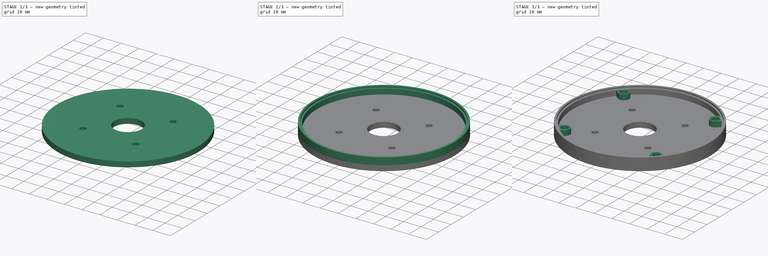
[diagram: build sequence overview — one tinted view per stage of 3, left to right]
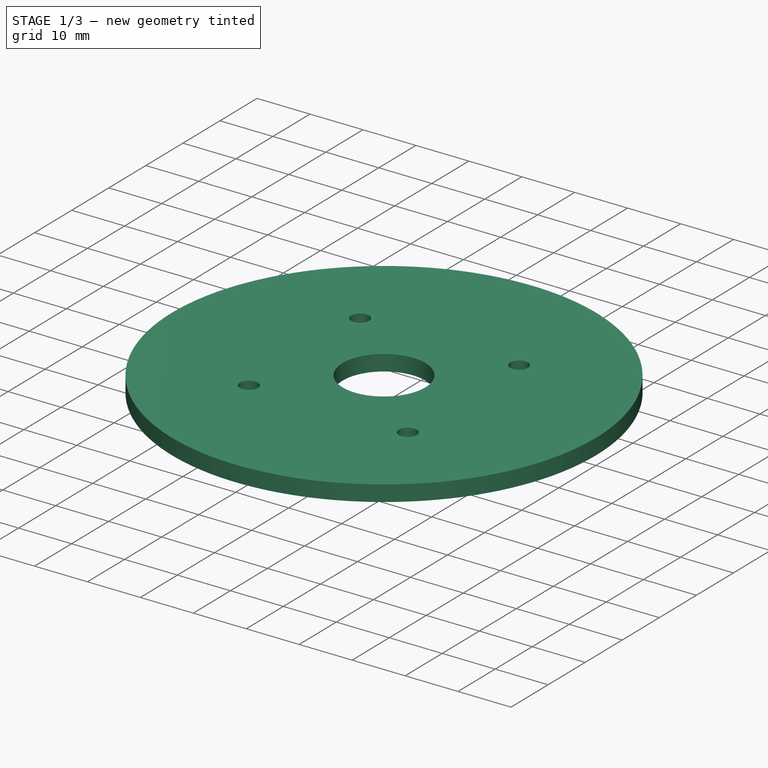
[diagram: stage 1 of 3 — iso view after this stage's code; geometry added in this stage tinted green]
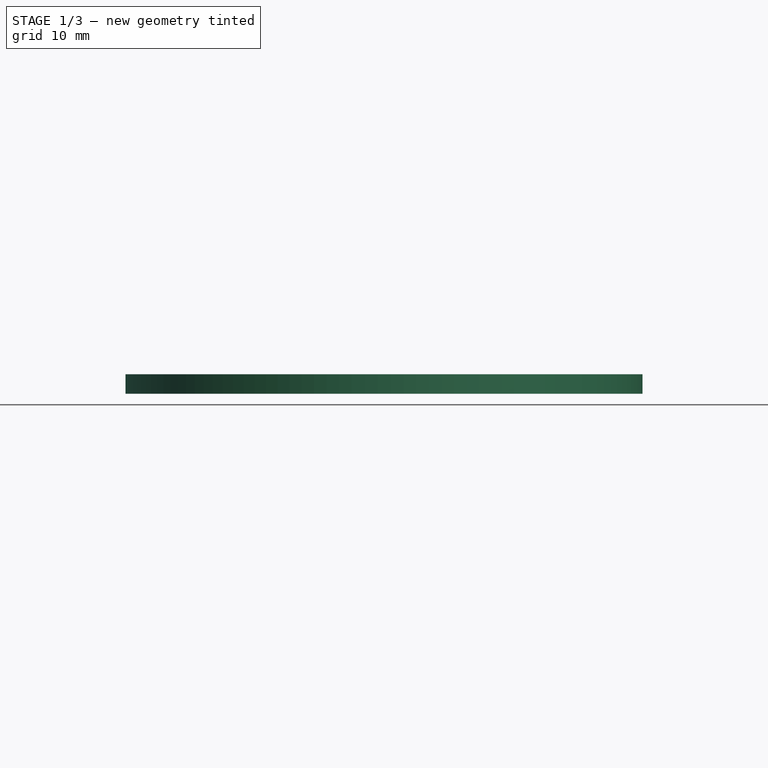
[diagram: stage 1 of 3 — front view after this stage's code; geometry added in this stage tinted green]
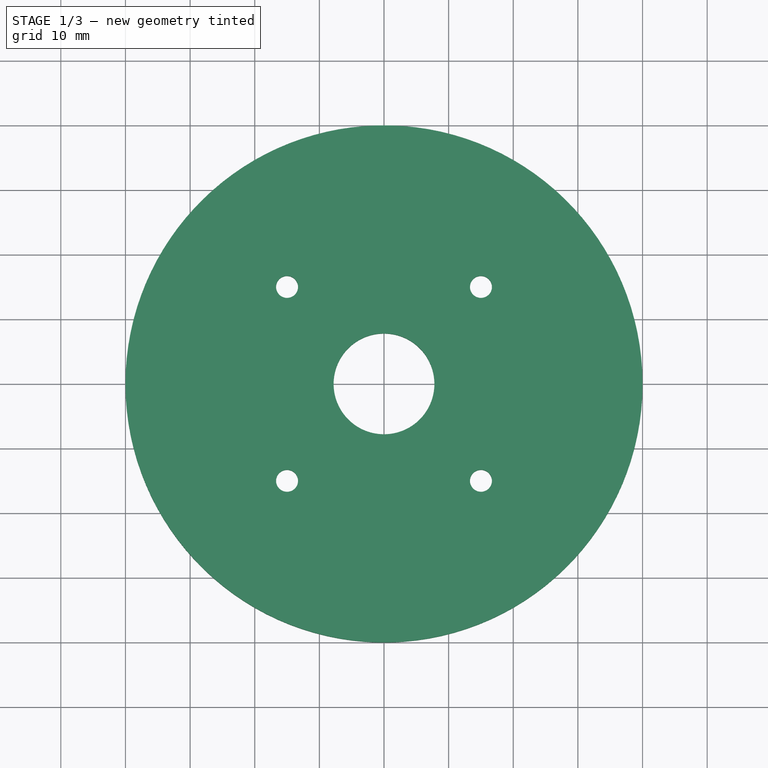
[diagram: stage 1 of 3 — top view after this stage's code; geometry added in this stage tinted green]
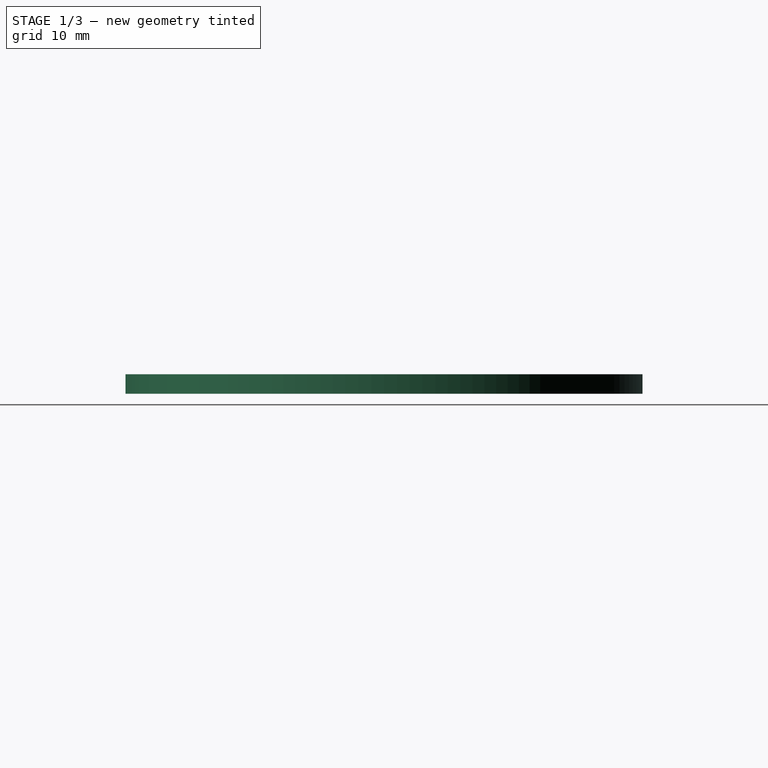
[diagram: stage 1 of 3 — right view after this stage's code; geometry added in this stage tinted green]
FCSTD DOCUMENT  (FreeCAD 0.16RUnknown)
Label: top
License: All rights reserved
LicenseURL: http://en.wikipedia.org/wiki/All_rights_reserved
objects: Sketcher::SketchObject×6, PartDesign::Pad×4, PartDesign::Pocket×2, PartDesign::PolarPattern×1, PartDesign::Mirrored×1
note: 20 computed .brp shape members not serialized (recipe doc carries the construction recipe); baked Part::Feature solids carry a one-line shape summary decoded from their .brp

FEATURE [Sketcher::SketchObject] Sketch
  sketch-geometry (2):
    g0: Circle CenterX=0 CenterY=0 CenterZ=0 NormalX=0 NormalY=0 NormalZ=1 Radius=40
    g1: Circle CenterX=0 CenterY=0 CenterZ=0 NormalX=0 NormalY=0 NormalZ=1 Radius=7.8
  constraints (4):
    c: Coincident(g0,g-1)
    c: Coincident(g1,g-1)
    c: Radius(g0) = 40
    c: Radius(g1) = 7.8
FEATURE [PartDesign::Pad] Pad
  Length = 3
  Length2 = 100
  Sketch = -> Sketch
  Type = 0
FEATURE [Sketcher::SketchObject] Sketch001
  Placement = pos=(0,0,3) rot=(0,0,1;0rad)
  Support = -> Pad [Face4]
  sketch-geometry (1):
    g0: Circle CenterX=15 CenterY=15 CenterZ=0 NormalX=0 NormalY=0 NormalZ=1 Radius=1.7
  constraints (3):
    c: Radius(g0) = 1.7
    c: DistanceY(g-1,g0) = 15
    c: DistanceX(g-1,g0) = 15
FEATURE [PartDesign::Pocket] Pocket
  Length = 5
  Sketch = -> Sketch001
  Type = 1
FEATURE [PartDesign::PolarPattern] PolarPattern
  Angle = 360
  Axis = -> Sketch001 [N_Axis]
  Occurrences = 4
  Originals = -> [Pocket]
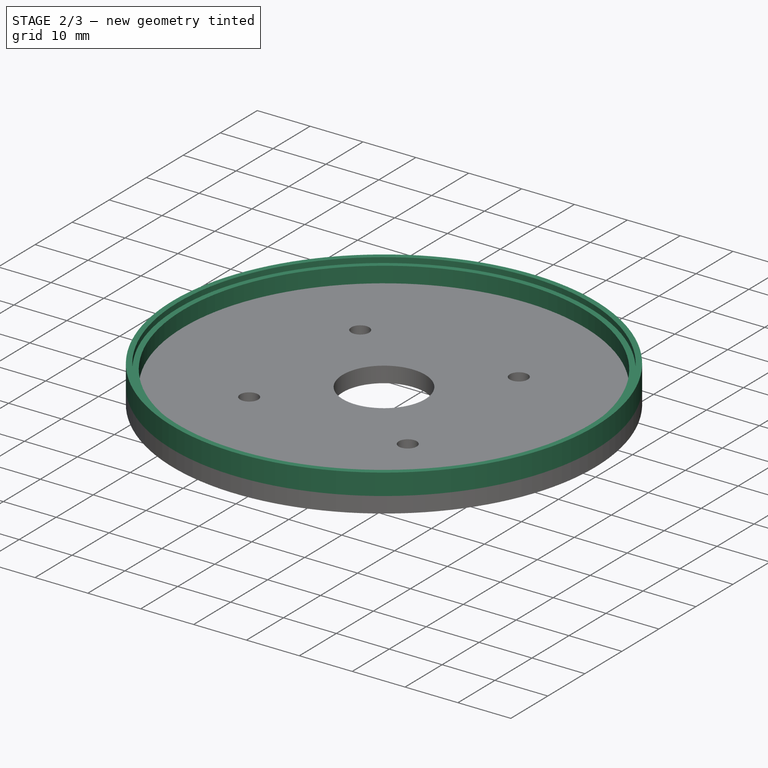
[diagram: stage 2 of 3 — iso view after this stage's code; geometry added in this stage tinted green]
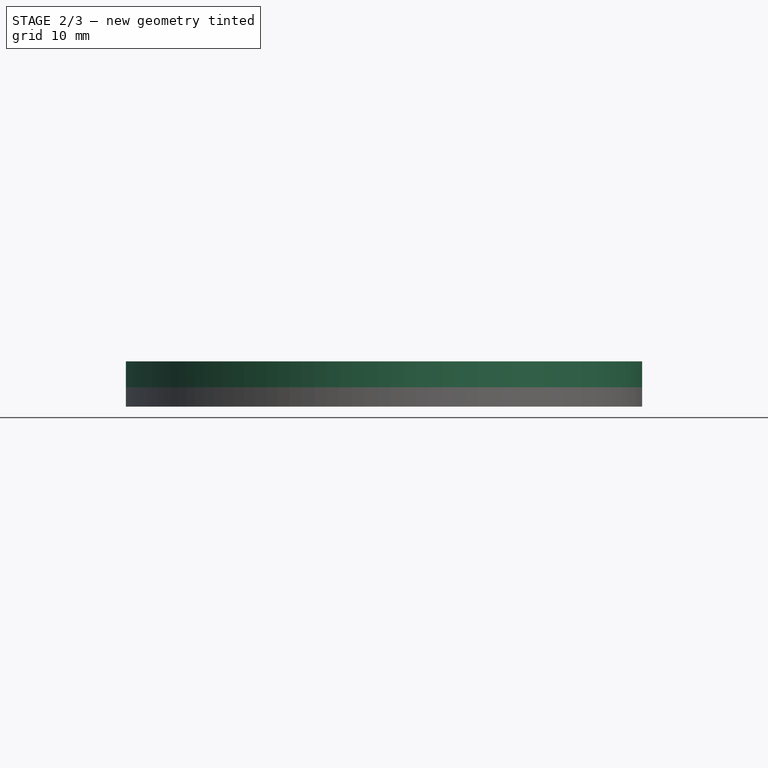
[diagram: stage 2 of 3 — front view after this stage's code; geometry added in this stage tinted green]
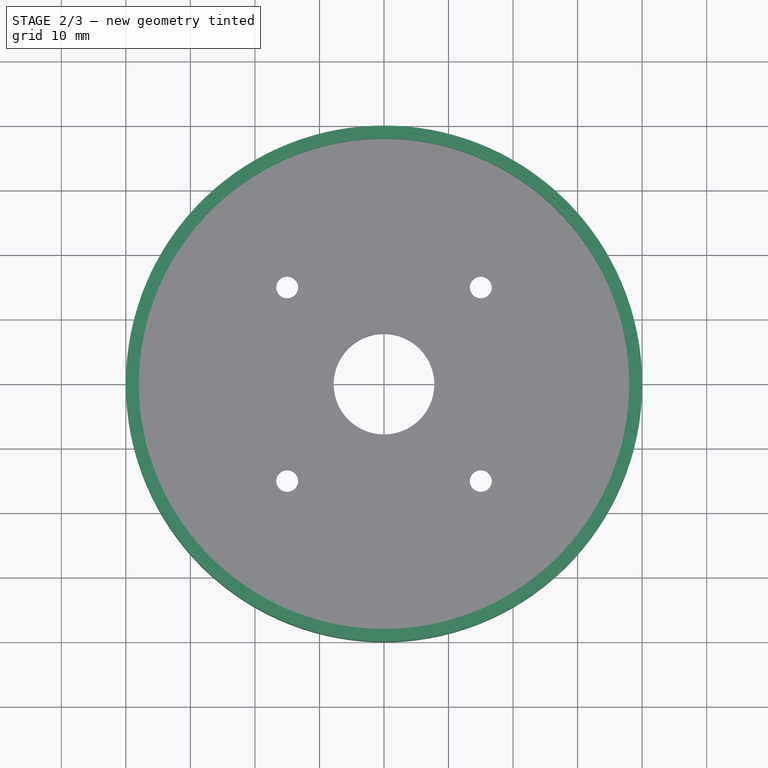
[diagram: stage 2 of 3 — top view after this stage's code; geometry added in this stage tinted green]
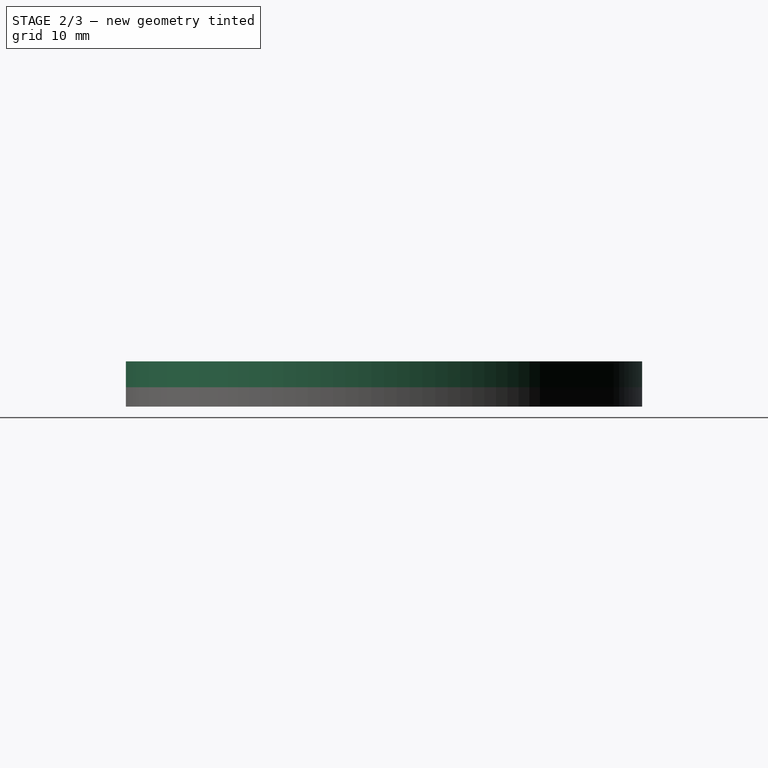
[diagram: stage 2 of 3 — right view after this stage's code; geometry added in this stage tinted green]
FEATURE [Sketcher::SketchObject] Sketch002
  ExternalGeometry = -> [PolarPattern]
  Placement = pos=(0,0,3) rot=(0,0,1;0rad)
  Support = -> PolarPattern [Face3]
  sketch-geometry (2):
    g0: Circle CenterX=0 CenterY=0 CenterZ=0 NormalX=0 NormalY=0 NormalZ=1 Radius=40
    g1: Circle CenterX=0 CenterY=0 CenterZ=0 NormalX=0 NormalY=0 NormalZ=1 Radius=38
  constraints (4):
    c: Coincident(g0,g-1)
    c: Equal(g0,g-3)
    c: Coincident(g-1,g1)
    c: Radius(g1) = 38
FEATURE [PartDesign::Pad] Pad001
  Length = 3
  Length2 = 100
  Sketch = -> Sketch002
  Type = 0
FEATURE [Sketcher::SketchObject] Sketch003
  ExternalGeometry = -> [Pad001]
  Placement = pos=(0,0,6) rot=(0,0,1;0rad)
  Support = -> Pad001 [Face1]
  sketch-geometry (2):
    g0: Circle CenterX=0 CenterY=0 CenterZ=0 NormalX=0 NormalY=0 NormalZ=1 Radius=40
    g1: Circle CenterX=0 CenterY=0 CenterZ=0 NormalX=0 NormalY=0 NormalZ=1 Radius=39
  constraints (4):
    c: Coincident(g0,g-1)
    c: Coincident(g1,g-1)
    c: Radius(g1) = 39
    c: Equal(g0,g-3)
FEATURE [PartDesign::Pad] Pad002
  Length = 1
  Length2 = 100
  Sketch = -> Sketch003
  Type = 0
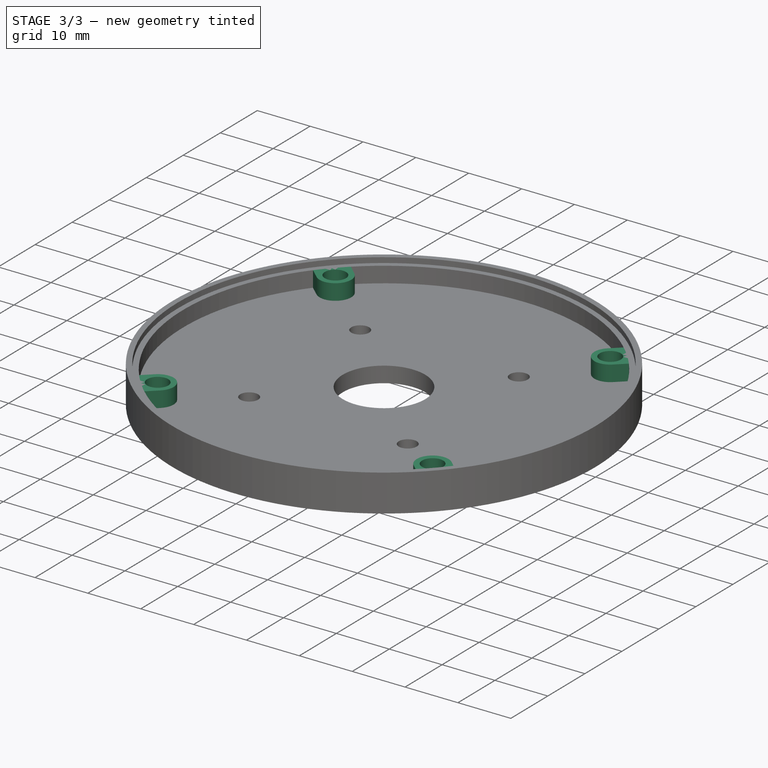
[diagram: stage 3 of 3 — iso view after this stage's code; geometry added in this stage tinted green]
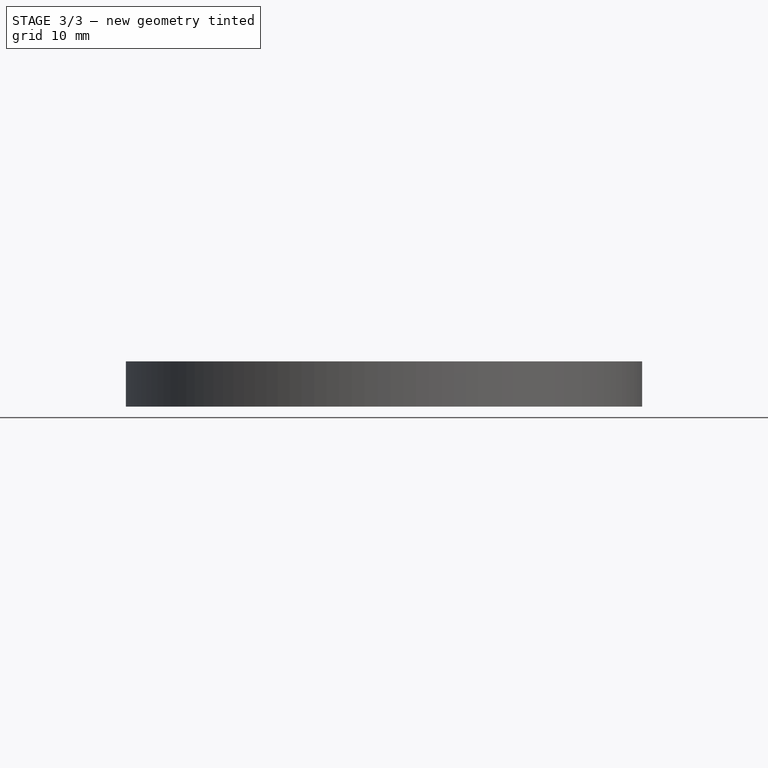
[diagram: stage 3 of 3 — front view after this stage's code; geometry added in this stage tinted green]
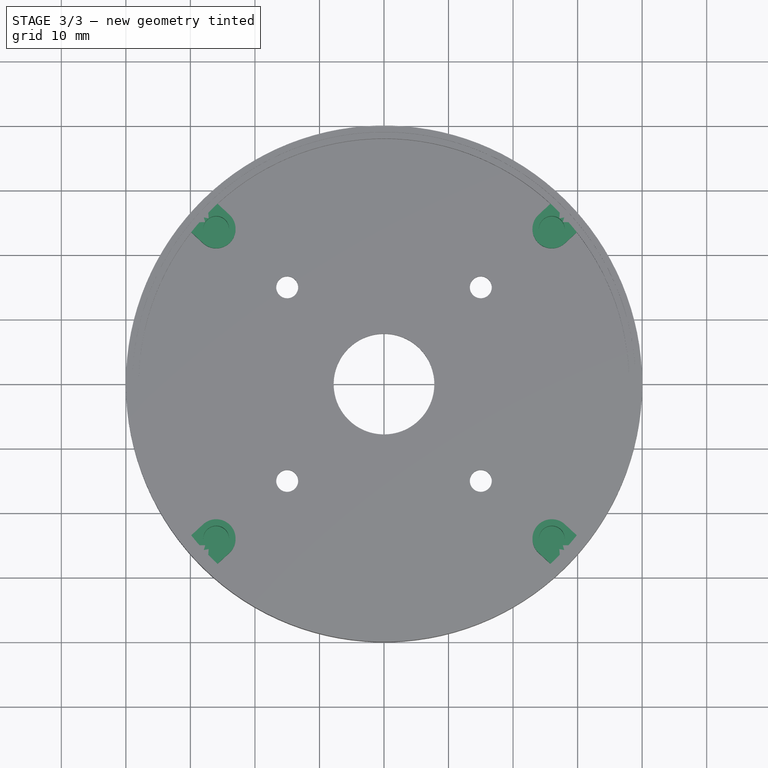
[diagram: stage 3 of 3 — top view after this stage's code; geometry added in this stage tinted green]
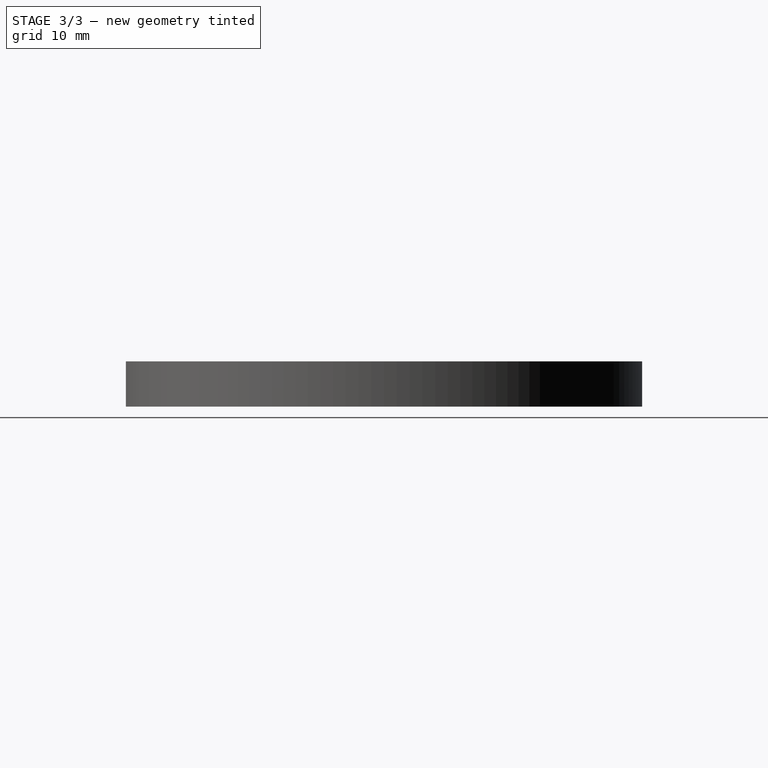
[diagram: stage 3 of 3 — right view after this stage's code; geometry added in this stage tinted green]
FEATURE [Sketcher::SketchObject] Sketch004
  ExternalGeometry = -> [Pad002]
  Placement = pos=(0,0,3) rot=(0,0,1;0rad)
  Support = -> Pad002 [Face10]
  sketch-geometry (13):
    g0: LineSegment [constr] StartX=26 StartY=24 StartZ=0 EndX=26 EndY=-24 EndZ=0
    g1: ArcOfCircle CenterX=26 CenterY=24 CenterZ=0 NormalX=0 NormalY=0 NormalZ=1 Radius=3 StartAngle=2.31622 EndAngle=5.45781
    g2: LineSegment [constr] StartX=28.0348 StartY=21.7956 StartZ=0 EndX=23.9652 EndY=26.2044 EndZ=0
    g3: LineSegment StartX=23.9652 StartY=26.2044 StartZ=0 EndX=25.8877 EndY=27.9791 EndZ=0
    g4: LineSegment StartX=25.8877 StartY=27.9791 StartZ=0 EndX=29.9574 EndY=23.5702 EndZ=0
    g5: LineSegment StartX=29.9574 StartY=23.5702 StartZ=0 EndX=28.0348 EndY=21.7956 EndZ=0
    g6: LineSegment [constr] StartX=26 StartY=24 StartZ=0 EndX=27.9225 EndY=25.7746 EndZ=0
    g7: ArcOfCircle CenterX=26 CenterY=-24 CenterZ=0 NormalX=0 NormalY=0 NormalZ=1 Radius=3 StartAngle=0.825377 EndAngle=3.96697
    g8: LineSegment [constr] StartX=28.0348 StartY=-21.7956 StartZ=0 EndX=23.9652 EndY=-26.2044 EndZ=0
    g9: LineSegment StartX=23.9652 StartY=-26.2044 StartZ=0 EndX=25.8877 EndY=-27.9791 EndZ=0
    g10: LineSegment StartX=25.8877 StartY=-27.9791 StartZ=0 EndX=29.9574 EndY=-23.5702 EndZ=0
    g11: LineSegment StartX=29.9574 StartY=-23.5702 StartZ=0 EndX=28.0348 EndY=-21.7956 EndZ=0
    g12: LineSegment [constr] StartX=26 StartY=-24 StartZ=0 EndX=27.9225 EndY=-25.7746 EndZ=0
  constraints (38):
    c: Vertical(g0)
    c: Distance(g-1,g0) = 26
    c: DistanceY(g0,g0) = 48
    c: Symmetric(g0,g0,g-1)
    c: Coincident(g1,g0)
    c: Coincident(g1,g2)
    c: Coincident(g2,g3)
    c: Coincident(g3,g4)
    c: Coincident(g4,g5)
    c: Coincident(g5,g2)
    c: PointOnObject(g0,g2)
    c: Coincident(g1,g2)
    c: Equal(g5,g3)
    c: Perpendicular(g3,g2)
    c: Coincident(g6,g0)
    c: PointOnObject(g6,g-3)
    c: PointOnObject(g6,g4)
    c: Symmetric(g4,g3,g6)
    c: Perpendicular(g4,g5)
    c: Perpendicular(g-3,g6)
    c: Distance(g2) = 6
    c: Coincident(g7,g0)
    c: Coincident(g7,g8)
    c: Coincident(g8,g9)
    c: Coincident(g9,g10)
    c: Coincident(g10,g11)
    c: Coincident(g11,g8)
    c: Perpendicular(g8,g11)
    c: Perpendicular(g9,g8)
    c: Coincident(g8,g7)
    c: Equal(g9,g11)
    c: Coincident(g12,g0)
    c: PointOnObject(g12,g-3)
    c: Perpendicular(g-3,g12)
    c: PointOnObject(g0,g8)
    c: Perpendicular(g12,g8)
    c: PointOnObject(g12,g10)
    c: Distance(g8) = 6
FEATURE [PartDesign::Pad] Pad003
  Length = 3
  Length2 = 100
  Sketch = -> Sketch004
  Type = 0
  UpToFace = -> Pad002 [Face14]
FEATURE [PartDesign::Mirrored] Mirrored
  MirrorPlane = -> Sketch004 [V_Axis]
  Originals = -> [Pad003]
FEATURE [Sketcher::SketchObject] Sketch005
  ExternalGeometry = -> [Mirrored]
  Placement = pos=(0,0,6) rot=(0,0,1;0rad)
  Support = -> Mirrored [Face34]
  sketch-geometry (4):
    g0: Circle CenterX=-26 CenterY=24 CenterZ=0 NormalX=0 NormalY=0 NormalZ=1 Radius=2
    g1: Circle CenterX=-26 CenterY=-24 CenterZ=0 NormalX=0 NormalY=0 NormalZ=1 Radius=2
    g2: Circle CenterX=26 CenterY=-24 CenterZ=0 NormalX=0 NormalY=0 NormalZ=1 Radius=2
    g3: Circle CenterX=26 CenterY=24 CenterZ=0 NormalX=0 NormalY=0 NormalZ=1 Radius=2
  constraints (8):
    c: Coincident(g0,g-6)
    c: Coincident(g1,g-5)
    c: Coincident(g2,g-4)
    c: Coincident(g3,g-3)
    c: Equal(g3,g1)
    c: Equal(g1,g0)
    c: Equal(g0,g2)
    c: Radius(g3) = 2
FEATURE [PartDesign::Pocket] Pocket001
  Length = 5
  Sketch = -> Sketch005
  Type = 0
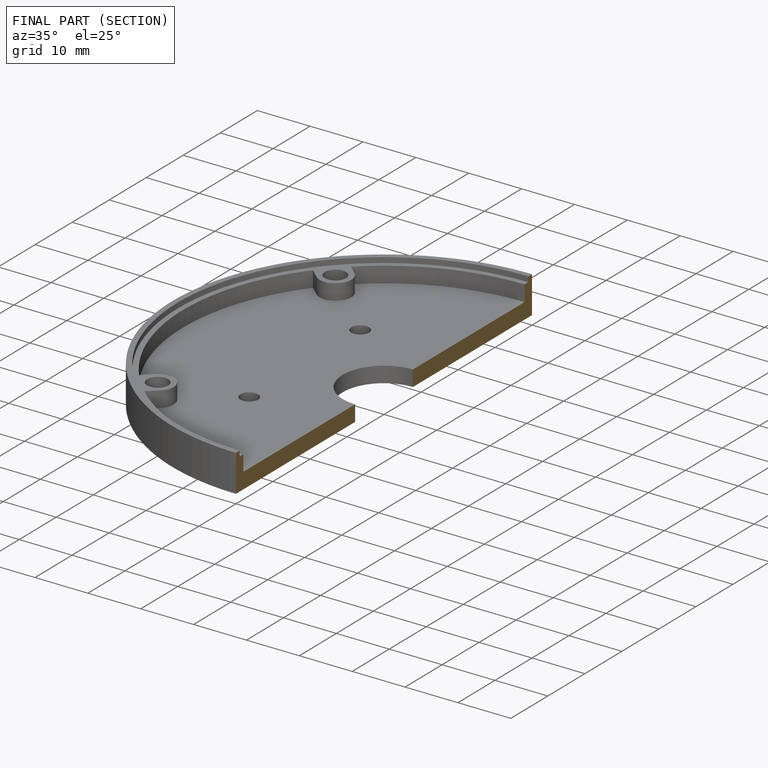
[diagram: finished part — half-section view (interior)]
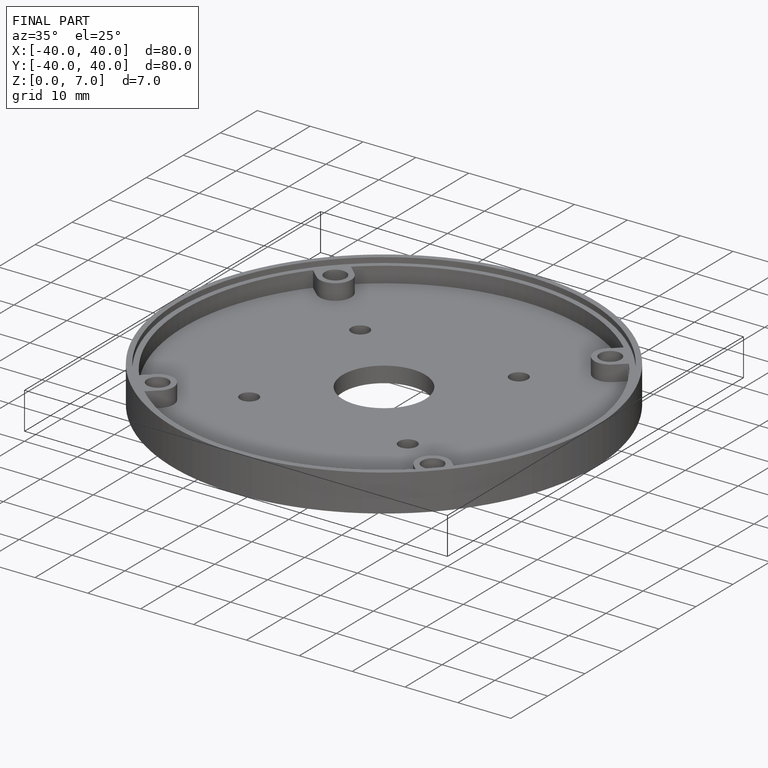
[diagram: finished part — iso view with bounding-box wireframe]
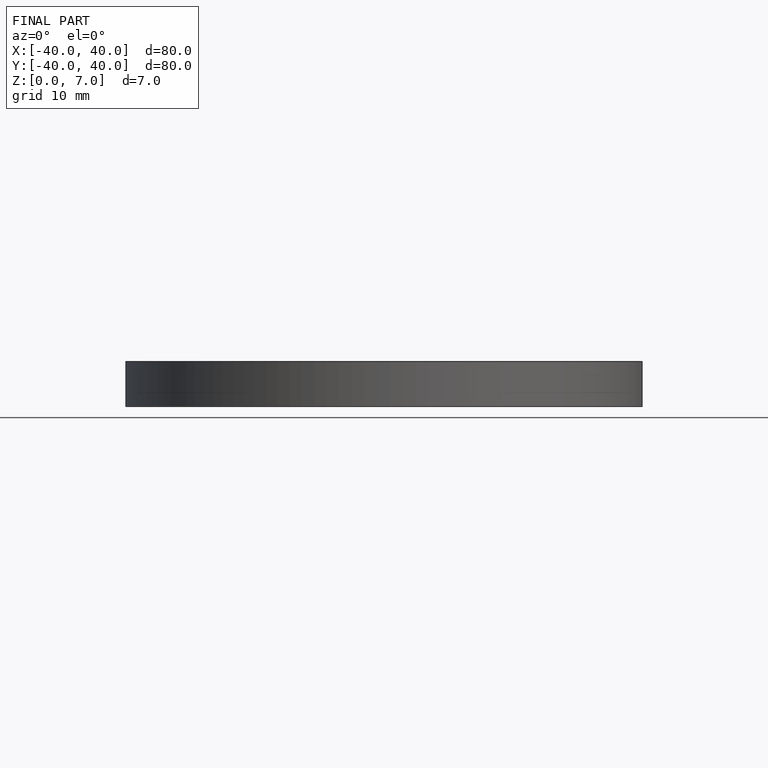
[diagram: finished part — front view with bounding-box wireframe]
